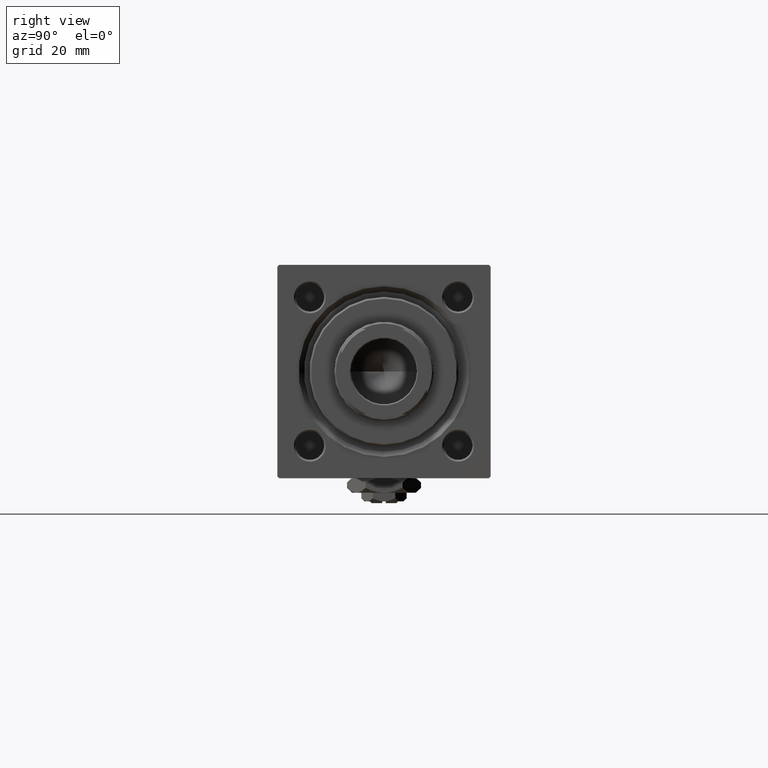
[diagram: clean part render]
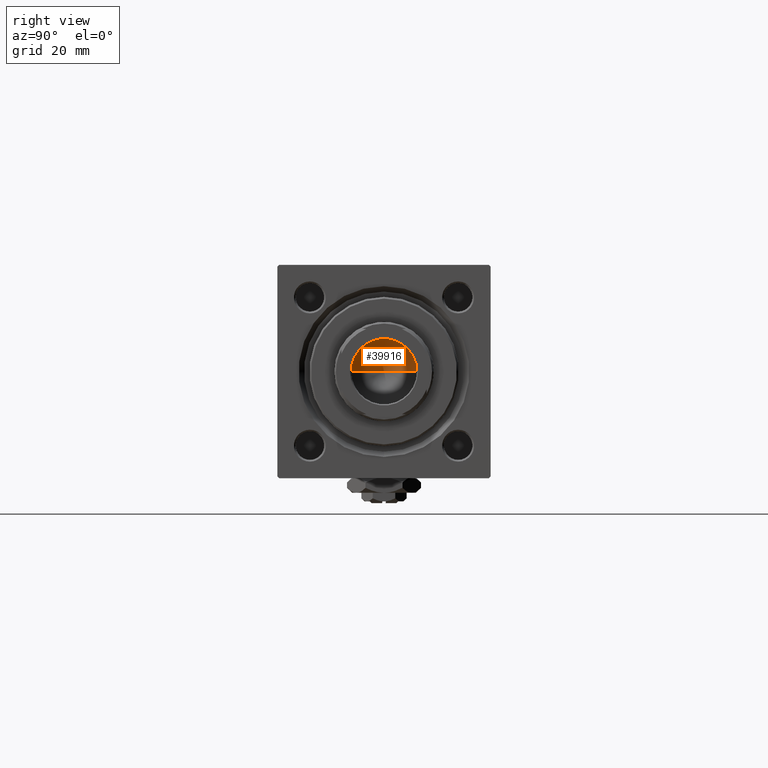
[diagram: same view with one face highlighted and labeled with its STEP entity id]
A machine part, right view. The second image highlights one B-rep face of the part: STEP entity #39916.
In plain terms, the highlighted conical surface has half-angle 59 deg.
Its self-contained STEP definition (entity closure, byte-faithful):
#3131 = ORIENTED_EDGE ( 'NONE', *, *, #11369, .F. ) ;
#6229 = EDGE_LOOP ( 'NONE', ( #3131, #41904, #8755 ) ) ;
#8755 = ORIENTED_EDGE ( 'NONE', *, *, #42743, .T. ) ;
#10397 = LINE ( 'NONE', #49519, #50541 ) ;
#11369 = EDGE_CURVE ( 'NONE', #39423, #32374, #47540, .T. ) ;
#11415 = DIRECTION ( 'NONE',  ( 1.000000000000000000, 0.000000000000000000, 0.000000000000000000 ) ) ;
#12416 = VECTOR ( 'NONE', #35394, 1000.000000000000000 ) ;
#12709 = CARTESIAN_POINT ( 'NONE',  ( -9.769621978240258809E-15, 0.000000000000000000, 95.44203927399506426 ) ) ;
#13878 = CARTESIAN_POINT ( 'NONE',  ( 9.249999999999992895, 0.000000000000000000, 101.0000000000000000 ) ) ;
#14855 = FACE_OUTER_BOUND ( 'NONE', #6229, .T. ) ;
#15212 = EDGE_CURVE ( 'NONE', #39423, #40974, #10397, .T. ) ;
#17530 = DIRECTION ( 'NONE',  ( -0.8571673007021117785, 1.049727191138617956E-16, 0.5150380749100550437 ) ) ;
#21672 = DIRECTION ( 'NONE',  ( -0.000000000000000000, -0.000000000000000000, 1.000000000000000000 ) ) ;
#26797 = AXIS2_PLACEMENT_3D ( 'NONE', #42821, #21672, #38852 ) ;
#27027 = CARTESIAN_POINT ( 'NONE',  ( 0.000000000000000000, 0.000000000000000000, 101.0000000000000000 ) ) ;
#31023 = CIRCLE ( 'NONE', #26797, 9.249999999999992895 ) ;
#31779 = AXIS2_PLACEMENT_3D ( 'NONE', #27027, #43161, #11415 ) ;
#32374 = VERTEX_POINT ( 'NONE', #13878 ) ;
#32975 = CARTESIAN_POINT ( 'NONE',  ( -9.249999999999992895, 1.132798289211300712E-15, 101.0000000000000000 ) ) ;
#34320 = CONICAL_SURFACE ( 'NONE', #31779, 9.249999999999992895, 1.029744258676653423 ) ;
#35128 = CARTESIAN_POINT ( 'NONE',  ( 9.249999999999992895, 0.000000000000000000, 101.0000000000000000 ) ) ;
#35394 = DIRECTION ( 'NONE',  ( 0.8571673007021117785, 0.000000000000000000, 0.5150380749100550437 ) ) ;
#38852 = DIRECTION ( 'NONE',  ( 1.000000000000000000, 0.000000000000000000, 0.000000000000000000 ) ) ;
#39423 = VERTEX_POINT ( 'NONE', #12709 ) ;
#39916 = ADVANCED_FACE ( 'NONE', ( #14855 ), #34320, .F. ) ;
#40974 = VERTEX_POINT ( 'NONE', #32975 ) ;
#41904 = ORIENTED_EDGE ( 'NONE', *, *, #15212, .T. ) ;
#42743 = EDGE_CURVE ( 'NONE', #40974, #32374, #31023, .T. ) ;
#42821 = CARTESIAN_POINT ( 'NONE',  ( 0.000000000000000000, 0.000000000000000000, 101.0000000000000000 ) ) ;
#43161 = DIRECTION ( 'NONE',  ( -0.000000000000000000, -0.000000000000000000, 1.000000000000000000 ) ) ;
#47540 = LINE ( 'NONE', #35128, #12416 ) ;
#49519 = CARTESIAN_POINT ( 'NONE',  ( -9.249999999999992895, 1.132798289211300712E-15, 101.0000000000000000 ) ) ;
#50541 = VECTOR ( 'NONE', #17530, 1000.000000000000000 ) ;